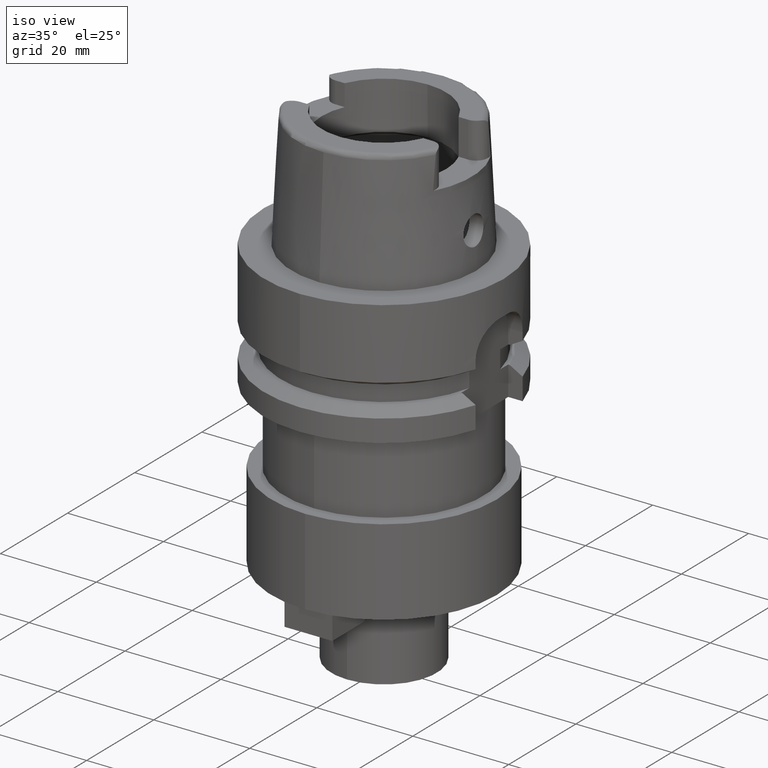
[diagram: clean part render]
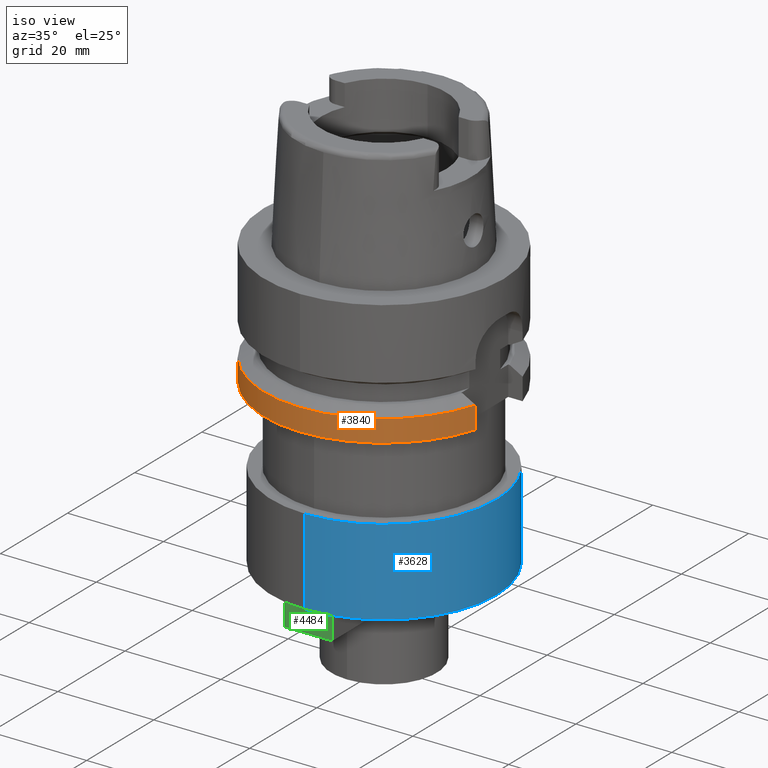
[diagram: same view with three faces highlighted in distinct colors, each labeled with its STEP entity id]
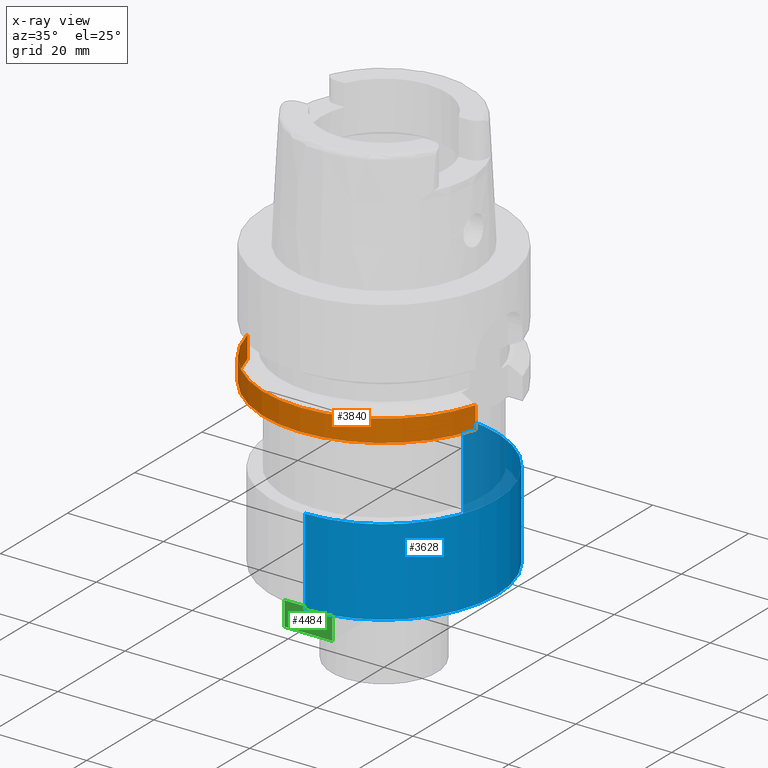
[diagram: x-ray of the same camera — body ghosted, the three highlighted faces saturated]
A machine part, iso view with three faces highlighted in distinct colors.
The next image is the same camera in x-ray (body ghosted, the three faces saturated) — at least one of them is partly hidden behind the body in this view.
Their STEP definitions:

[orange] entity #3840 — the highlighted cylindrical surface (partial cylindrical patch) has radius 25 mm, axis along (0, 0, 1).
#1224=CARTESIAN_POINT('',(0.E0,0.E0,-2.6E1));
#1225=DIRECTION('',(0.E0,0.E0,1.E0));
#1226=DIRECTION('',(-9.707728879609E-1,-2.4E-1,0.E0));
#1227=AXIS2_PLACEMENT_3D('',#1224,#1225,#1226);
#1232=CARTESIAN_POINT('',(0.E0,0.E0,-2.6E1));
#1233=DIRECTION('',(0.E0,0.E0,1.E0));
#1234=DIRECTION('',(0.E0,-1.E0,0.E0));
#1235=AXIS2_PLACEMENT_3D('',#1232,#1233,#1234);
#1406=DIRECTION('',(3.543158376215E-8,-1.433170672556E-7,1.E0));
#1407=VECTOR('',#1406,4.622494562328E0);
#1408=CARTESIAN_POINT('',(-2.426932219902E1,-6.E0,-2.6E1));
#1409=LINE('',#1408,#1407);
#1413=DIRECTION('',(-1.377913021241E-8,-4.724243038359E-8,-1.E0));
#1414=VECTOR('',#1413,4.622502721709E0);
#1415=CARTESIAN_POINT('',(2.400000006369E1,-6.999999781622E0,
-2.137749727829E1));
#1416=LINE('',#1415,#1414);
#2158=CARTESIAN_POINT('',(0.E0,0.E0,-2.137749907476E1));
#2159=DIRECTION('',(0.E0,0.E0,-1.E0));
#2160=DIRECTION('',(9.6E-1,-2.8E-1,0.E0));
#2161=AXIS2_PLACEMENT_3D('',#2158,#2159,#2160);
#2166=CARTESIAN_POINT('',(0.E0,0.E0,-2.137749907476E1));
#2167=DIRECTION('',(0.E0,0.E0,-1.E0));
#2168=DIRECTION('',(0.E0,-1.E0,0.E0));
#2169=AXIS2_PLACEMENT_3D('',#2166,#2167,#2168);
#2646=CARTESIAN_POINT('',(-2.426932219902E1,-6.E0,-2.6E1));
#2647=VERTEX_POINT('',#2646);
#2648=CARTESIAN_POINT('',(0.E0,-2.5E1,-2.6E1));
#2649=CARTESIAN_POINT('',(2.4E1,-7.E0,-2.6E1));
#2650=VERTEX_POINT('',#2648);
#2651=VERTEX_POINT('',#2649);
#2674=CARTESIAN_POINT('',(-2.426932203524E1,-6.000000662483E0,
-2.137750543767E1));
#2675=VERTEX_POINT('',#2674);
#2676=CARTESIAN_POINT('',(2.4E1,-7.E0,-2.137749907476E1));
#2677=CARTESIAN_POINT('',(0.E0,-2.5E1,-2.137749907476E1));
#2678=VERTEX_POINT('',#2676);
#2679=VERTEX_POINT('',#2677);
#3824=CARTESIAN_POINT('',(0.E0,0.E0,-8.315E1));
#3825=DIRECTION('',(0.E0,0.E0,1.E0));
#3826=DIRECTION('',(0.E0,1.E0,0.E0));
#3827=AXIS2_PLACEMENT_3D('',#3824,#3825,#3826);
#3828=CYLINDRICAL_SURFACE('',#3827,2.5E1);
#3830=ORIENTED_EDGE('',*,*,#3829,.T.);
#3832=ORIENTED_EDGE('',*,*,#3831,.F.);
#3834=ORIENTED_EDGE('',*,*,#3833,.F.);
#3835=ORIENTED_EDGE('',*,*,#3814,.T.);
#3836=ORIENTED_EDGE('',*,*,#3705,.F.);
#3837=ORIENTED_EDGE('',*,*,#3703,.F.);
#3838=EDGE_LOOP('',(#3830,#3832,#3834,#3835,#3836,#3837));
#3839=FACE_OUTER_BOUND('',#3838,.F.);
#1228=CIRCLE('',#1227,2.5E1);
#1236=CIRCLE('',#1235,2.5E1);
#2162=CIRCLE('',#2161,2.5E1);
#2170=CIRCLE('',#2169,2.5E1);
#3703=EDGE_CURVE('',#2647,#2650,#1228,.T.);
#3705=EDGE_CURVE('',#2650,#2651,#1236,.T.);
#3814=EDGE_CURVE('',#2678,#2651,#1416,.T.);
#3829=EDGE_CURVE('',#2647,#2675,#1409,.T.);
#3831=EDGE_CURVE('',#2679,#2675,#2170,.T.);
#3833=EDGE_CURVE('',#2678,#2679,#2162,.T.);
#3840=ADVANCED_FACE('',(#3839),#3828,.T.);

[blue] entity #3628 — the highlighted cylindrical surface (partial cylindrical patch) has radius 23.5 mm, axis along (0, 0, 1).
#1075=CARTESIAN_POINT('',(0.E0,0.E0,-6.E1));
#1076=DIRECTION('',(0.E0,0.E0,1.E0));
#1077=DIRECTION('',(0.E0,-1.E0,0.E0));
#1078=AXIS2_PLACEMENT_3D('',#1075,#1076,#1077);
#1135=DIRECTION('',(0.E0,0.E0,-1.E0));
#1136=VECTOR('',#1135,1.8E1);
#1137=CARTESIAN_POINT('',(0.E0,2.35E1,-4.2E1));
#1138=LINE('',#1137,#1136);
#1142=DIRECTION('',(0.E0,0.E0,-1.E0));
#1143=VECTOR('',#1142,1.8E1);
#1144=CARTESIAN_POINT('',(0.E0,-2.35E1,-4.2E1));
#1145=LINE('',#1144,#1143);
#1157=CARTESIAN_POINT('',(0.E0,0.E0,-4.2E1));
#1158=DIRECTION('',(0.E0,0.E0,-1.E0));
#1159=DIRECTION('',(0.E0,1.E0,0.E0));
#1160=AXIS2_PLACEMENT_3D('',#1157,#1158,#1159);
#2602=CARTESIAN_POINT('',(0.E0,-2.35E1,-6.E1));
#2603=CARTESIAN_POINT('',(0.E0,2.35E1,-6.E1));
#2604=VERTEX_POINT('',#2602);
#2605=VERTEX_POINT('',#2603);
#2622=CARTESIAN_POINT('',(0.E0,2.35E1,-4.2E1));
#2623=VERTEX_POINT('',#2622);
#2624=CARTESIAN_POINT('',(0.E0,-2.35E1,-4.2E1));
#2625=VERTEX_POINT('',#2624);
#3614=CARTESIAN_POINT('',(0.E0,0.E0,-8.315E1));
#3615=DIRECTION('',(0.E0,0.E0,1.E0));
#3616=DIRECTION('',(0.E0,1.E0,0.E0));
#3617=AXIS2_PLACEMENT_3D('',#3614,#3615,#3616);
#3618=CYLINDRICAL_SURFACE('',#3617,2.35E1);
#3620=ORIENTED_EDGE('',*,*,#3619,.T.);
#3621=ORIENTED_EDGE('',*,*,#3583,.F.);
#3623=ORIENTED_EDGE('',*,*,#3622,.F.);
#3625=ORIENTED_EDGE('',*,*,#3624,.F.);
#3626=EDGE_LOOP('',(#3620,#3621,#3623,#3625));
#3627=FACE_OUTER_BOUND('',#3626,.F.);
#1079=CIRCLE('',#1078,2.35E1);
#1161=CIRCLE('',#1160,2.35E1);
#3583=EDGE_CURVE('',#2604,#2605,#1079,.T.);
#3619=EDGE_CURVE('',#2623,#2605,#1138,.T.);
#3622=EDGE_CURVE('',#2625,#2604,#1145,.T.);
#3624=EDGE_CURVE('',#2623,#2625,#1161,.T.);
#3628=ADVANCED_FACE('',(#3627),#3618,.T.);

[green] entity #4484 — the highlighted planar face has unit normal (0, -1, 0).
#2283=DIRECTION('',(0.E0,0.E0,-1.E0));
#2284=VECTOR('',#2283,5.E0);
#2285=CARTESIAN_POINT('',(-5.E0,-2.25E1,-6.E1));
#2286=LINE('',#2285,#2284);
#2304=DIRECTION('',(1.E0,0.E0,0.E0));
#2305=VECTOR('',#2304,1.E1);
#2306=CARTESIAN_POINT('',(-5.E0,-2.25E1,-6.E1));
#2307=LINE('',#2306,#2305);
#2311=DIRECTION('',(0.E0,0.E0,-1.E0));
#2312=VECTOR('',#2311,5.E0);
#2313=CARTESIAN_POINT('',(5.E0,-2.25E1,-6.E1));
#2314=LINE('',#2313,#2312);
#2325=DIRECTION('',(1.E0,0.E0,0.E0));
#2326=VECTOR('',#2325,1.E1);
#2327=CARTESIAN_POINT('',(-5.E0,-2.25E1,-6.5E1));
#2328=LINE('',#2327,#2326);
#2615=CARTESIAN_POINT('',(5.E0,-2.25E1,-6.E1));
#2617=VERTEX_POINT('',#2615);
#2618=CARTESIAN_POINT('',(-5.E0,-2.25E1,-6.E1));
#2619=VERTEX_POINT('',#2618);
#2803=CARTESIAN_POINT('',(5.E0,-2.25E1,-6.5E1));
#2804=VERTEX_POINT('',#2803);
#2807=CARTESIAN_POINT('',(-5.E0,-2.25E1,-6.5E1));
#2808=VERTEX_POINT('',#2807);
#4472=CARTESIAN_POINT('',(5.E0,-2.25E1,-6.5E1));
#4473=DIRECTION('',(0.E0,-1.E0,0.E0));
#4474=DIRECTION('',(0.E0,0.E0,1.E0));
#4475=AXIS2_PLACEMENT_3D('',#4472,#4473,#4474);
#4476=PLANE('',#4475);
#4477=ORIENTED_EDGE('',*,*,#3605,.T.);
#4478=ORIENTED_EDGE('',*,*,#4439,.T.);
#4480=ORIENTED_EDGE('',*,*,#4479,.F.);
#4481=ORIENTED_EDGE('',*,*,#4464,.F.);
#4482=EDGE_LOOP('',(#4477,#4478,#4480,#4481));
#4483=FACE_OUTER_BOUND('',#4482,.F.);
#3605=EDGE_CURVE('',#2619,#2617,#2307,.T.);
#4439=EDGE_CURVE('',#2617,#2804,#2314,.T.);
#4464=EDGE_CURVE('',#2619,#2808,#2286,.T.);
#4479=EDGE_CURVE('',#2808,#2804,#2328,.T.);
#4484=ADVANCED_FACE('',(#4483),#4476,.T.);